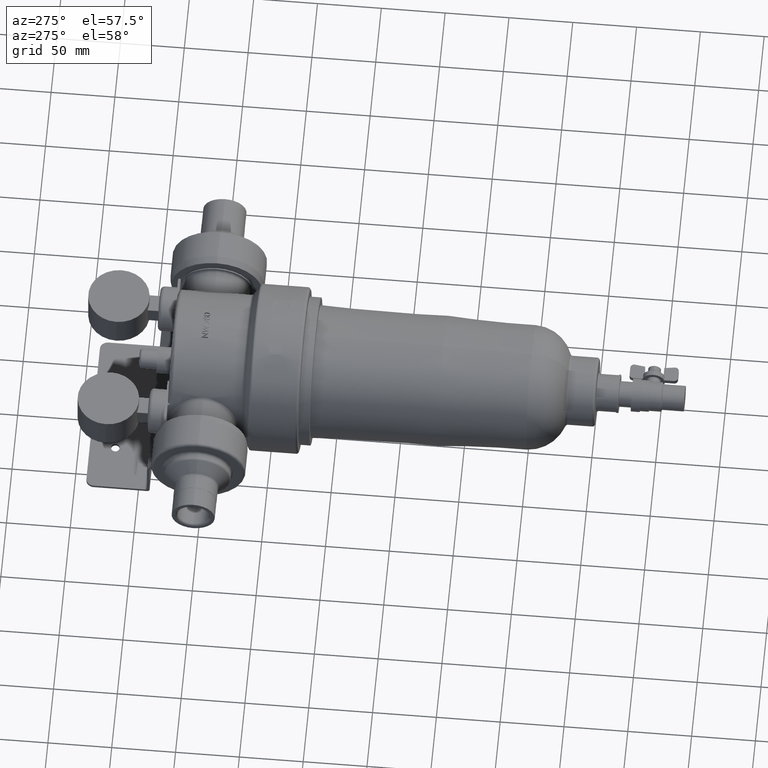
[diagram: clean part render]
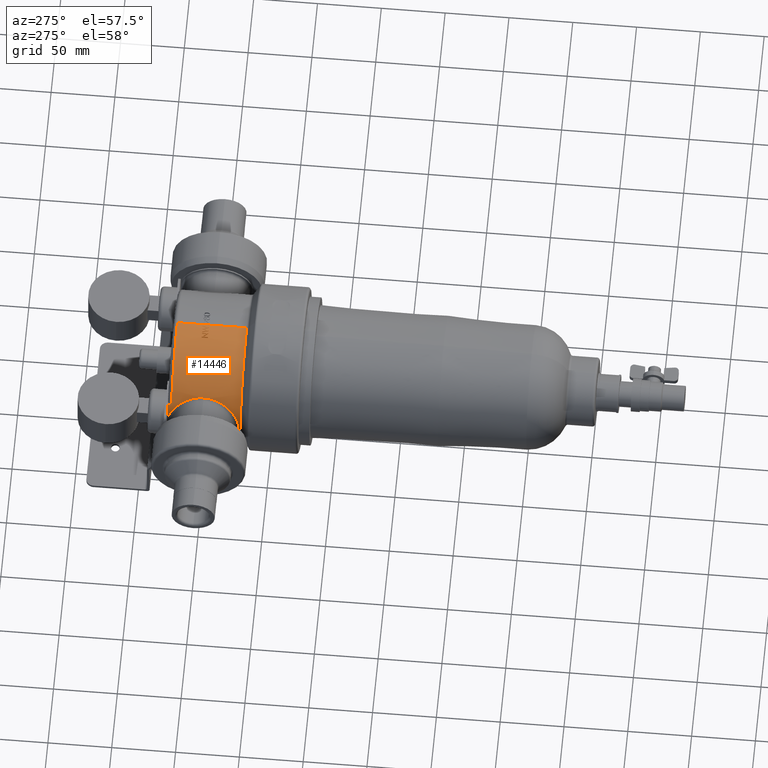
[diagram: same view with one face highlighted and labeled with its STEP entity id]
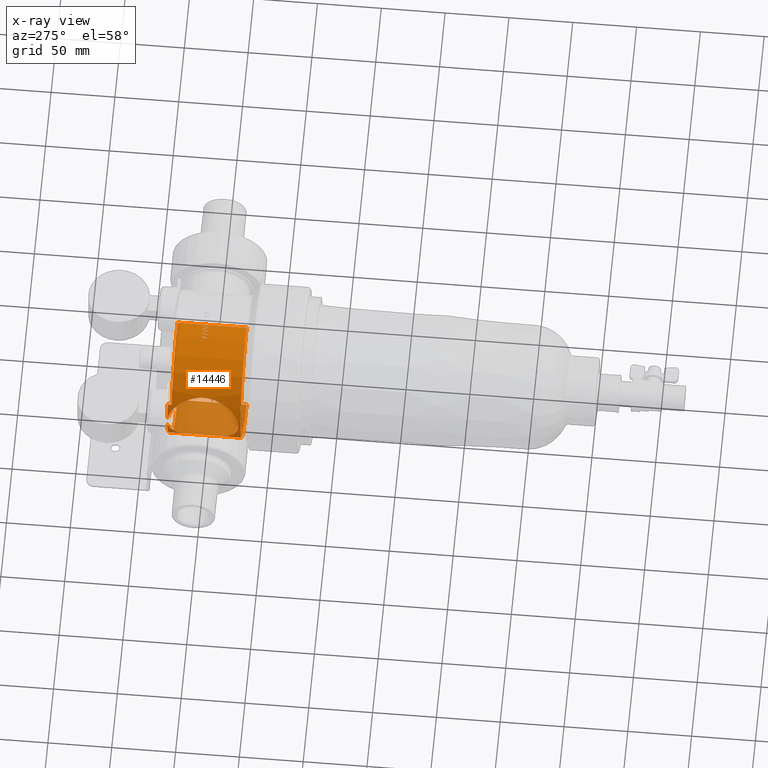
[diagram: x-ray of the same camera — body ghosted, the highlighted face saturated]
A machine part, auxiliary view. The second image highlights one B-rep face of the part: STEP entity #14446.
The next image is the same camera in x-ray: the body ghosted, the highlighted face saturated — about 26% of this face is hidden behind the body in this view.
In plain terms, the highlighted cylindrical surface (partial cylindrical patch) has radius 56 mm, axis along (-0, -1, -0).
Its self-contained STEP definition (entity closure, byte-faithful):
#8 = CARTESIAN_POINT ( 'NONE',  ( -52.67826876431577432, 24.79999999999904503, 19.00000000000000355 ) ) ;
#93 = CIRCLE ( 'NONE', #321, 56.00000000004899903 ) ;
#116 = CARTESIAN_POINT ( 'NONE',  ( -50.01986363951789372, -10.19271347802379779, 25.17961956602051288 ) ) ;
#131 = EDGE_CURVE ( 'NONE', #4404, #3033, #2638, .T. ) ;
#140 = CIRCLE ( 'NONE', #2549, 56.00000000004899903 ) ;
#149 = CARTESIAN_POINT ( 'NONE',  ( -45.17570280386297554, 25.95576085532371735, -33.16270900814051004 ) ) ;
#222 = CARTESIAN_POINT ( 'NONE',  ( -53.86925056832880188, -23.08536027207117769, 15.30501122911088174 ) ) ;
#268 = CARTESIAN_POINT ( 'NONE',  ( -55.98214386113390617, -27.96168685956749300, 2.307850287088652586 ) ) ;
#309 = DIRECTION ( 'NONE',  ( -0.0000000000000000000, 1.000000000000000000, -0.0000000000000000000 ) ) ;
#321 = AXIS2_PLACEMENT_3D ( 'NONE', #14339, #7580, #892 ) ;
#322 = CARTESIAN_POINT ( 'NONE',  ( -52.24508562245444665, -18.69246930317603272, -20.20457716263312520 ) ) ;
#325 = B_SPLINE_CURVE_WITH_KNOTS ( 'NONE', 3,
 ( #817, #14274, #7512, #8648, #1924, #9799, #3068, #10922, #4185, #12062, #5305, #13189, #6444, #14316, #7554, #866, #8695, #1967, #9849, #3112, #10964, #4230, #12114, #5349 ),
 .UNSPECIFIED., .F., .F.,
 ( 4, 2, 2, 2, 2, 2, 2, 2, 2, 2, 2, 4 ),
 ( 0.09935596830352450004, 0.1031654080999442058, 0.1050701279981540587, 0.1069748478963639116, 0.1107842876927835896, 0.1145937274892032814, 0.1164984473874131204, 0.1184031672856229594, 0.1222126070820426236, 0.1241173269802524626, 0.1260220468784623016, 0.1298314866748819796 ),
 .UNSPECIFIED. ) ;
#360 = EDGE_CURVE ( 'NONE', #9417, #9989, #11251, .T. ) ;
#370 = CARTESIAN_POINT ( 'NONE',  ( -49.16774235251829595, -3.664905493546628090, -26.80552988086612842 ) ) ;
#418 = CARTESIAN_POINT ( 'NONE',  ( -54.87612215698847962, 25.51037403673237236, 11.34116667239499421 ) ) ;
#454 = LINE ( 'NONE', #1579, #9019 ) ;
#458 = CARTESIAN_POINT ( 'NONE',  ( -10.16257008370823911, 3.519439087181315706, 55.08045314399527825 ) ) ;
#470 = CARTESIAN_POINT ( 'NONE',  ( -51.06740969086986581, 14.75376161952423182, 22.98262414479994931 ) ) ;
#526 = CARTESIAN_POINT ( 'NONE',  ( -49.06811612784895260, -1.971002174037947974, 26.98743075453587181 ) ) ;
#540 = CYLINDRICAL_SURFACE ( 'NONE', #3320, 56.00000000004899903 ) ;
#591 = CARTESIAN_POINT ( 'NONE',  ( -52.67826876431577432, 24.79999999999904503, 19.00000000000000355 ) ) ;
#597 = CARTESIAN_POINT ( 'NONE',  ( -3.894335937495541078, 4.762500000001766765, 55.86442649496563462 ) ) ;
#623 = EDGE_CURVE ( 'NONE', #4452, #11697, #13874, .T. ) ;
#647 =( BOUNDED_CURVE ( )  B_SPLINE_CURVE ( 3, ( #4211, #1946, #5282, #12089 ),
 .UNSPECIFIED., .F., .T. ) 
 B_SPLINE_CURVE_WITH_KNOTS ( ( 4, 4 ),
 ( 1.709265581001892409, 1.766112020896065227 ),
 .UNSPECIFIED. ) 
 CURVE ( )  GEOMETRIC_REPRESENTATION_ITEM ( )  RATIONAL_B_SPLINE_CURVE ( ( 1.000000000000000000, 0.9997307249851576927, 0.9997307249851576927, 1.000000000000000000 ) ) 
 REPRESENTATION_ITEM ( '' )  );
#811 = CARTESIAN_POINT ( 'NONE',  ( -46.37893829281207303, 24.79999999999905214, -31.38461538456409272 ) ) ;
#817 = CARTESIAN_POINT ( 'NONE',  ( -50.02981635227396140, 10.24497779421834309, -25.15983854803580044 ) ) ;
#832 = CARTESIAN_POINT ( 'NONE',  ( -11.29567307692307487, 0.0000000000000000000, 54.84895413537766728 ) ) ;
#866 = CARTESIAN_POINT ( 'NONE',  ( -54.56327819902914200, 24.77769281473319651, -12.64974365590061645 ) ) ;
#891 = ORIENTED_EDGE ( 'NONE', *, *, #5729, .T. ) ;
#892 = DIRECTION ( 'NONE',  ( 0.0000000000000000000, 0.0000000000000000000, -1.000000000000000000 ) ) ;
#1032 = EDGE_CURVE ( 'NONE', #3447, #4884, #11144, .T. ) ;
#1040 = AXIS2_PLACEMENT_3D ( 'NONE', #9872, #3133, #10986 ) ;
#1114 = AXIS2_PLACEMENT_3D ( 'NONE', #5746, #13605, #6866 ) ;
#1138 = EDGE_CURVE ( 'NONE', #11697, #10366, #454, .T. ) ;
#1194 = CIRCLE ( 'NONE', #13680, 56.00000000004899903 ) ;
#1249 = CARTESIAN_POINT ( 'NONE',  ( -42.47307314421517788, 28.12311276741209554, -36.49709656522879442 ) ) ;
#1304 = CARTESIAN_POINT ( 'NONE',  ( -54.17348218757675227, -23.83665479872805193, 14.19097621691386024 ) ) ;
#1323 = AXIS2_PLACEMENT_3D ( 'NONE', #11863, #5112, #12993 ) ;
#1341 = ORIENTED_EDGE ( 'NONE', *, *, #14363, .T. ) ;
#1354 = CARTESIAN_POINT ( 'NONE',  ( -55.99139943320053447, -27.98163177405310265, -1.345740343626373958 ) ) ;
#1411 = CARTESIAN_POINT ( 'NONE',  ( -51.15699844477405378, -15.09329105424412276, -22.78699118971006143 ) ) ;
#1456 = CARTESIAN_POINT ( 'NONE',  ( -49.05280751765826608, -1.395110227574517525, -27.01522489976088792 ) ) ;
#1476 = VERTEX_POINT ( 'NONE', #10128 ) ;
#1508 = CARTESIAN_POINT ( 'NONE',  ( -53.86726087857000067, 23.08064854141840883, 15.31388088642589551 ) ) ;
#1541 = ORIENTED_EDGE ( 'NONE', *, *, #4269, .T. ) ;
#1566 = CARTESIAN_POINT ( 'NONE',  ( -50.05788346752080287, 10.58063823933454017, 25.11386970624619863 ) ) ;
#1579 = CARTESIAN_POINT ( 'NONE',  ( -8.059615384615383959, -199998.4740242887347, 55.41698836870836686 ) ) ;
#1622 = CARTESIAN_POINT ( 'NONE',  ( -49.36179631878349738, -6.171778660499104951, 26.44858754322728700 ) ) ;
#1753 = DIRECTION ( 'NONE',  ( -0.0000000000000000000, -1.000000000000000000, -0.0000000000000000000 ) ) ;
#1820 = CARTESIAN_POINT ( 'NONE',  ( -1.160096153849760281, 4.762500000000946976, 55.98798243301244781 ) ) ;
#1844 = B_SPLINE_CURVE_WITH_KNOTS ( 'NONE', 3,
 ( #11706, #10562, #3575, #12845, #6092, #13963 ),
 .UNSPECIFIED., .F., .F.,
 ( 4, 2, 4 ),
 ( 0.0000000000000000000, 0.0007309858204465603760, 0.001461971640893120752 ),
 .UNSPECIFIED. ) ;
#1923 = CARTESIAN_POINT ( 'NONE',  ( -2.533894230767939959, 1.293659855768864553, 55.94264366324466664 ) ) ;
#1924 = CARTESIAN_POINT ( 'NONE',  ( -51.04006233653279168, 14.65390313904130615, -23.04425252351275688 ) ) ;
#1946 = CARTESIAN_POINT ( 'NONE',  ( -8.780640613199146571, 1.252396364791156014, 55.31750769987536387 ) ) ;
#1967 = CARTESIAN_POINT ( 'NONE',  ( -55.12920320584807854, 26.08143878922577130, -9.854211285956115063 ) ) ;
#1969 = CARTESIAN_POINT ( 'NONE',  ( -2.505273437504699885, -1.713906794265085409E-12, 55.94393269165853866 ) ) ;
#2013 = CARTESIAN_POINT ( 'NONE',  ( -5.449399038461537614, 0.0000000000000000000, 55.73422691780250915 ) ) ;
#2083 = CARTESIAN_POINT ( 'NONE',  ( 0.0000000000000000000, 24.79999999999904503, 0.0000000000000000000 ) ) ;
#2084 = LINE ( 'NONE', #7855, #7682 ) ;
#2134 =( BOUNDED_CURVE ( )  B_SPLINE_CURVE ( 3, ( #11329, #3471, #5720, #13584 ),
 .UNSPECIFIED., .F., .F. ) 
 B_SPLINE_CURVE_WITH_KNOTS ( ( 4, 4 ),
 ( 4.733106465139869989, 4.756049560100763074 ),
 .UNSPECIFIED. ) 
 CURVE ( )  GEOMETRIC_REPRESENTATION_ITEM ( )  RATIONAL_B_SPLINE_CURVE ( ( 1.000000000000000000, 0.9999561350138439497, 0.9999561350138439497, 1.000000000000000000 ) ) 
 REPRESENTATION_ITEM ( '' )  );
#2285 = DIRECTION ( 'NONE',  ( -0.0000000000000000000, -1.000000000000000000, -0.0000000000000000000 ) ) ;
#2302 = VERTEX_POINT ( 'NONE', #3008 ) ;
#2431 = LINE ( 'NONE', #8, #8416 ) ;
#2436 = CARTESIAN_POINT ( 'NONE',  ( -1.597040264423076339, 4.762499999998226485, 55.97722271066419353 ) ) ;
#2443 = CARTESIAN_POINT ( 'NONE',  ( -54.55952800220082111, -24.76560191211661532, 12.64499423469480988 ) ) ;
#2448 = EDGE_LOOP ( 'NONE', ( #9526, #10483, #12003, #12704, #3285, #14414, #8878, #13399, #4153, #6225 ) ) ;
#2492 = CARTESIAN_POINT ( 'NONE',  ( -55.85756534268874418, -27.69354318647602398, -4.090341454279420752 ) ) ;
#2537 = AXIS2_PLACEMENT_3D ( 'NONE', #9913, #3179, #11039 ) ;
#2538 = CARTESIAN_POINT ( 'NONE',  ( -50.65453260588969897, -13.13692131868571167, -23.87829095859115114 ) ) ;
#2549 = AXIS2_PLACEMENT_3D ( 'NONE', #5110, #12991, #6254 ) ;
#2589 = CARTESIAN_POINT ( 'NONE',  ( -49.05130272843145178, 1.339029269231734043, -27.01807382297662485 ) ) ;
#2593 = CARTESIAN_POINT ( 'NONE',  ( -55.84654443319985262, 27.66950981133597764, 4.273920414519997379 ) ) ;
#2601 = LINE ( 'NONE', #10849, #13164 ) ;
#2638 = LINE ( 'NONE', #4005, #14267 ) ;
#2647 = CARTESIAN_POINT ( 'NONE',  ( -53.49804126522003855, 22.14061478511168346, 16.55731217353506324 ) ) ;
#2699 = CARTESIAN_POINT ( 'NONE',  ( -49.57696355372050334, 7.538801731616665336, 26.04123570593789339 ) ) ;
#2711 = CIRCLE ( 'NONE', #1040, 56.00000000004899903 ) ;
#2760 = CARTESIAN_POINT ( 'NONE',  ( -50.01986363951789372, -10.19271347802379779, 25.17961956602051288 ) ) ;
#2879 = VERTEX_POINT ( 'NONE', #6740 ) ;
#2901 = CARTESIAN_POINT ( 'NONE',  ( -43.38589474632436094, 27.80000000001336957, -35.40711986403795919 ) ) ;
#2930 = VERTEX_POINT ( 'NONE', #12417 ) ;
#2937 = CARTESIAN_POINT ( 'NONE',  ( -3.938221153846153122, 3.642472956730769873, 55.86134991341418043 ) ) ;
#2980 = CIRCLE ( 'NONE', #10535, 56.00000000004899903 ) ;
#2986 = CARTESIAN_POINT ( 'NONE',  ( -6.716346153848658851, 4.762499999997525713, 55.59577946523612013 ) ) ;
#3008 = CARTESIAN_POINT ( 'NONE',  ( -3.956347656249999289, 4.762499999998226485, 55.86006904066958612 ) ) ;
#3019 = VERTEX_POINT ( 'NONE', #8477 ) ;
#3025 = DIRECTION ( 'NONE',  ( -0.0000000000000000000, 1.000000000000000000, -0.0000000000000000000 ) ) ;
#3033 = VERTEX_POINT ( 'NONE', #8526 ) ;
#3046 = EDGE_CURVE ( 'NONE', #8832, #4312, #2601, .T. ) ;
#3068 = CARTESIAN_POINT ( 'NONE',  ( -51.47613175537645702, 16.20700503487434574, -22.05353612358996784 ) ) ;
#3112 = CARTESIAN_POINT ( 'NONE',  ( -55.41571065340733782, 26.72455781138297937, -8.090611818625141893 ) ) ;
#3133 = DIRECTION ( 'NONE',  ( -0.0000000000000000000, -1.000000000000000000, -0.0000000000000000000 ) ) ;
#3163 = EDGE_CURVE ( 'NONE', #10826, #14122, #1844, .T. ) ;
#3179 = DIRECTION ( 'NONE',  ( -0.0000000000000000000, -1.000000000000000000, 0.0000000000000000000 ) ) ;
#3214 = DIRECTION ( 'NONE',  ( 0.0000000000000000000, 0.0000000000000000000, -1.000000000000000000 ) ) ;
#3215 =( BOUNDED_CURVE ( )  B_SPLINE_CURVE ( 3, ( #4026, #11898, #13033, #6287 ),
 .UNSPECIFIED., .F., .T. ) 
 B_SPLINE_CURVE_WITH_KNOTS ( ( 4, 4 ),
 ( 1.475248366117060117, 1.500088357438121855 ),
 .UNSPECIFIED. ) 
 CURVE ( )  GEOMETRIC_REPRESENTATION_ITEM ( )  RATIONAL_B_SPLINE_CURVE ( ( 1.000000000000000000, 0.9999485818968996131, 0.9999485818968996131, 1.000000000000000000 ) ) 
 REPRESENTATION_ITEM ( '' )  );
#3285 = ORIENTED_EDGE ( 'NONE', *, *, #7593, .T. ) ;
#3320 = AXIS2_PLACEMENT_3D ( 'NONE', #4176, #5338, #4222 ) ;
#3412 = CIRCLE ( 'NONE', #3651, 56.00000000004899903 ) ;
#3414 = AXIS2_PLACEMENT_3D ( 'NONE', #5651, #13517, #6778 ) ;
#3447 = VERTEX_POINT ( 'NONE', #10526 ) ;
#3471 = CARTESIAN_POINT ( 'NONE',  ( -1.588284744467647780, 3.174448406862394378, 55.97911017301107961 ) ) ;
#3488 = CIRCLE ( 'NONE', #3414, 56.00000000004899903 ) ;
#3526 = CARTESIAN_POINT ( 'NONE',  ( -50.72457768219912566, -13.49636635039298937, 23.74968666090094516 ) ) ;
#3572 = CARTESIAN_POINT ( 'NONE',  ( -55.06579438934059567, -25.93861423784753839, 10.22004183812363820 ) ) ;
#3575 = CARTESIAN_POINT ( 'NONE',  ( -43.07549463470297013, 27.82680463578495988, -35.78489293102814628 ) ) ;
#3621 = CARTESIAN_POINT ( 'NONE',  ( -55.37972679751925398, -26.65106520606718021, -8.482903743881241354 ) ) ;
#3651 = AXIS2_PLACEMENT_3D ( 'NONE', #6988, #309, #8110 ) ;
#3677 = CARTESIAN_POINT ( 'NONE',  ( -50.37297427903286717, -11.91951390749934170, -24.46648985351759720 ) ) ;
#3723 = CARTESIAN_POINT ( 'NONE',  ( -49.19290748740689168, 4.085329880635251598, -26.75985900928080241 ) ) ;
#3737 = VERTEX_POINT ( 'NONE', #11125 ) ;
#3760 = AXIS2_PLACEMENT_3D ( 'NONE', #5034, #12925, #6183 ) ;
#3777 = CARTESIAN_POINT ( 'NONE',  ( -52.98660327008105497, 20.78693542379631509, 18.14119754997084399 ) ) ;
#3782 = EDGE_CURVE ( 'NONE', #9385, #5102, #3488, .T. ) ;
#3811 = VECTOR ( 'NONE', #9853, 1000.000000000000000 ) ;
#3832 = CARTESIAN_POINT ( 'NONE',  ( -49.37951799400124031, 5.990119786070668084, 26.41355925374264046 ) ) ;
#3835 = CIRCLE ( 'NONE', #7084, 56.00000000004899903 ) ;
#3848 = FACE_BOUND ( 'NONE', #2448, .T. ) ;
#3954 = CARTESIAN_POINT ( 'NONE',  ( -2.533894230767939959, 1.293659855768864553, 55.94264366324466664 ) ) ;
#4005 = CARTESIAN_POINT ( 'NONE',  ( 0.0000000000000000000, -199998.4740242887347, -56.00000000004899903 ) ) ;
#4026 = CARTESIAN_POINT ( 'NONE',  ( -5.342548076920437872, 1.269809194712284706, 55.74457085718106697 ) ) ;
#4051 = CARTESIAN_POINT ( 'NONE',  ( -4.905506424744938698, 1.212805085479569556, 55.78683818654170778 ) ) ;
#4087 = ORIENTED_EDGE ( 'NONE', *, *, #4101, .T. ) ;
#4101 = EDGE_CURVE ( 'NONE', #2879, #9417, #10095, .T. ) ;
#4153 = ORIENTED_EDGE ( 'NONE', *, *, #6512, .T. ) ;
#4167 = LINE ( 'NONE', #8699, #3811 ) ;
#4176 = CARTESIAN_POINT ( 'NONE',  ( 0.0000000000000000000, -199998.4740242887347, 0.0000000000000000000 ) ) ;
#4185 = CARTESIAN_POINT ( 'NONE',  ( -52.23464442568142374, 18.64161297744437107, -20.20708486750293176 ) ) ;
#4211 = CARTESIAN_POINT ( 'NONE',  ( -7.729522235594333601, -1.458035081558506363E-11, 55.46399269810045496 ) ) ;
#4222 = DIRECTION ( 'NONE',  ( 0.0000000000000000000, 0.0000000000000000000, -1.000000000000000000 ) ) ;
#4230 = CARTESIAN_POINT ( 'NONE',  ( -55.72356337809252835, 27.40354273027796594, -5.688128379634496135 ) ) ;
#4240 = ORIENTED_EDGE ( 'NONE', *, *, #9214, .T. ) ;
#4255 =( BOUNDED_CURVE ( )  B_SPLINE_CURVE ( 3, ( #1969, #10966, #5352, #13233 ),
 .UNSPECIFIED., .F., .F. ) 
 B_SPLINE_CURVE_WITH_KNOTS ( ( 4, 4 ),
 ( 1.615548288711998959, 1.641179801486082335 ),
 .UNSPECIFIED. ) 
 CURVE ( )  GEOMETRIC_REPRESENTATION_ITEM ( )  RATIONAL_B_SPLINE_CURVE ( ( 1.000000000000000000, 0.9999452528787374783, 0.9999452528787374783, 1.000000000000000000 ) ) 
 REPRESENTATION_ITEM ( '' )  );
#4265 = CARTESIAN_POINT ( 'NONE',  ( -6.294564734514414006, 3.177008399608556743, 55.64673351320088557 ) ) ;
#4269 = EDGE_CURVE ( 'NONE', #3737, #1476, #1194, .T. ) ;
#4312 = VERTEX_POINT ( 'NONE', #13116 ) ;
#4313 = CARTESIAN_POINT ( 'NONE',  ( -7.729522235594333601, -1.458035081558506363E-11, 55.46399269810045496 ) ) ;
#4348 = ORIENTED_EDGE ( 'NONE', *, *, #131, .T. ) ;
#4396 = EDGE_CURVE ( 'NONE', #11371, #4716, #3835, .T. ) ;
#4404 = VERTEX_POINT ( 'NONE', #13425 ) ;
#4452 = VERTEX_POINT ( 'NONE', #12403 ) ;
#4578 = B_SPLINE_CURVE_WITH_KNOTS ( 'NONE', 3,
 ( #10453, #2593, #4818, #12721, #5973, #13848, #7107, #418, #8224, #1508, #9373, #2647, #10501, #3777, #11643, #4877, #12773, #6028, #13898, #7163, #470, #8279, #1566, #9439, #2699, #10556, #3832, #11701, #4933, #12838, #6087, #13958, #7215, #526, #8327, #1622, #9493, #2760 ),
 .UNSPECIFIED., .F., .F.,
 ( 4, 2, 2, 2, 2, 2, 2, 2, 2, 2, 2, 2, 2, 2, 2, 2, 2, 2, 4 ),
 ( 0.1363665023030385393, 0.1395990909267911528, 0.1412153852386674457, 0.1428316795505437664, 0.1492968567980489658, 0.1509131511099252587, 0.1525294454218015794, 0.1557620340455541652, 0.1589946226693067788, 0.1606109169811830995, 0.1622272112930594201, 0.1686923885405647028, 0.1703086828524410234, 0.1719249771643173441, 0.1751575657880699854, 0.1767738600999463061, 0.1783901544118226545, 0.1816227430355752959, 0.1880879202830805785 ),
 .UNSPECIFIED. ) ;
#4612 = CARTESIAN_POINT ( 'NONE',  ( -51.56012695245271971, -16.49787784685186054, 21.86064534253118552 ) ) ;
#4662 = CARTESIAN_POINT ( 'NONE',  ( -55.41252320706994539, -26.71715031488814063, 8.101828635923956412 ) ) ;
#4716 = VERTEX_POINT ( 'NONE', #591 ) ;
#4718 = CARTESIAN_POINT ( 'NONE',  ( -54.74749492541497631, -25.20619658683678566, -11.80532110325133566 ) ) ;
#4759 = CARTESIAN_POINT ( 'NONE',  ( -49.85658781522842986, -9.435288845605967367, -25.51303831932037980 ) ) ;
#4815 = CARTESIAN_POINT ( 'NONE',  ( -49.47092462580818051, 6.787064851769595286, -26.24313812412331970 ) ) ;
#4818 = CARTESIAN_POINT ( 'NONE',  ( -55.75718719545628232, 27.47620486152612074, 5.310291907569248515 ) ) ;
#4824 = EDGE_CURVE ( 'NONE', #10796, #7558, #325, .T. ) ;
#4875 = EDGE_CURVE ( 'NONE', #1476, #9385, #10540, .T. ) ;
#4877 = CARTESIAN_POINT ( 'NONE',  ( -52.20605093960066512, 18.55065397789064008, 20.27514775128339153 ) ) ;
#4884 = VERTEX_POINT ( 'NONE', #6489 ) ;
#4885 = CARTESIAN_POINT ( 'NONE',  ( -1.597040264423076339, 4.762499999998226485, 55.97722271066419353 ) ) ;
#4933 = CARTESIAN_POINT ( 'NONE',  ( -49.13988580028009778, 3.378205354857231502, 26.85667588207920886 ) ) ;
#4978 = CARTESIAN_POINT ( 'NONE',  ( -10.86826923076922924, 3.739783653846153744, 54.93524118389764510 ) ) ;
#5034 = CARTESIAN_POINT ( 'NONE',  ( 0.0000000000000000000, 0.0000000000000000000, 0.0000000000000000000 ) ) ;
#5085 = ORIENTED_EDGE ( 'NONE', *, *, #3782, .T. ) ;
#5102 = VERTEX_POINT ( 'NONE', #13454 ) ;
#5110 = CARTESIAN_POINT ( 'NONE',  ( 0.0000000000000000000, 4.762499999998226485, 0.0000000000000000000 ) ) ;
#5112 = DIRECTION ( 'NONE',  ( -0.0000000000000000000, 1.000000000000000000, -0.0000000000000000000 ) ) ;
#5123 = DIRECTION ( 'NONE',  ( -0.0000000000000000000, -1.000000000000000000, -0.0000000000000000000 ) ) ;
#5140 = EDGE_CURVE ( 'NONE', #14425, #14122, #5314, .T. ) ;
#5282 = CARTESIAN_POINT ( 'NONE',  ( -9.827171416193868581, 2.499326683252950154, 55.14120972249950370 ) ) ;
#5305 = CARTESIAN_POINT ( 'NONE',  ( -53.15296968942349309, 21.24025379451915541, -17.65653213809780908 ) ) ;
#5314 =( BOUNDED_CURVE ( )  B_SPLINE_CURVE ( 3, ( #6830, #149, #7943, #1249 ),
 .UNSPECIFIED., .F., .T. ) 
 B_SPLINE_CURVE_WITH_KNOTS ( ( 4, 4 ),
 ( 2.165712776435986697, 2.280664597954153994 ),
 .UNSPECIFIED. ) 
 CURVE ( )  GEOMETRIC_REPRESENTATION_ITEM ( )  RATIONAL_B_SPLINE_CURVE ( ( 1.000000000000000000, 0.9988991429991541660, 0.9988991429991541660, 1.000000000000000000 ) ) 
 REPRESENTATION_ITEM ( '' )  );
#5331 = CIRCLE ( 'NONE', #2537, 56.00000000004899903 ) ;
#5338 = DIRECTION ( 'NONE',  ( -0.0000000000000000000, -1.000000000000000000, -0.0000000000000000000 ) ) ;
#5349 = CARTESIAN_POINT ( 'NONE',  ( -55.90703341496339362, 27.80000000001336957, -3.225463492841652791 ) ) ;
#5352 = CARTESIAN_POINT ( 'NONE',  ( -3.460937787325119697, 2.429245331299461075, 55.89499835644895853 ) ) ;
#5506 = ORIENTED_EDGE ( 'NONE', *, *, #12789, .T. ) ;
#5549 = ORIENTED_EDGE ( 'NONE', *, *, #10084, .T. ) ;
#5651 = CARTESIAN_POINT ( 'NONE',  ( 0.0000000000000000000, 4.762499999998226485, 0.0000000000000000000 ) ) ;
#5717 = CARTESIAN_POINT ( 'NONE',  ( -8.059615384615383959, 4.762499999998226485, 55.41698836870836686 ) ) ;
#5720 = CARTESIAN_POINT ( 'NONE',  ( -2.016343385036039493, 1.586878768142178986, 55.96532661876675263 ) ) ;
#5729 = EDGE_CURVE ( 'NONE', #4716, #13924, #2431, .T. ) ;
#5746 = CARTESIAN_POINT ( 'NONE',  ( 0.0000000000000000000, 0.0000000000000000000, 0.0000000000000000000 ) ) ;
#5778 = CARTESIAN_POINT ( 'NONE',  ( -52.22719246575508123, -18.61101813324039966, 20.21713219238609582 ) ) ;
#5816 = EDGE_CURVE ( 'NONE', #14121, #3019, #2084, .T. ) ;
#5823 = CARTESIAN_POINT ( 'NONE',  ( -55.58833417451867120, -27.10600428013712460, 6.792093179330711550 ) ) ;
#5870 = CARTESIAN_POINT ( 'NONE',  ( -54.19064330989254330, -23.88172201676592721, -14.14042020435324787 ) ) ;
#5925 = CARTESIAN_POINT ( 'NONE',  ( -49.32454765886187431, -5.476413143469344824, -26.51603758703044633 ) ) ;
#5962 = CARTESIAN_POINT ( 'NONE',  ( -50.01986363951789372, -10.19271347802379779, 25.17961956602051288 ) ) ;
#5972 = CARTESIAN_POINT ( 'NONE',  ( -49.86977354025314924, 9.406611144138279812, -25.47808035545498129 ) ) ;
#5973 = CARTESIAN_POINT ( 'NONE',  ( -55.51709040209590995, 26.94906103829309885, 7.356229195288308986 ) ) ;
#6028 = CARTESIAN_POINT ( 'NONE',  ( -51.56418272220377474, 16.50248781419169219, 21.84593115662238816 ) ) ;
#6077 = CARTESIAN_POINT ( 'NONE',  ( -11.20599459134118270, 4.762500000004188827, 54.86734625644218255 ) ) ;
#6087 = CARTESIAN_POINT ( 'NONE',  ( -49.05440504163266979, 1.253740846585963187, 27.01232266030746842 ) ) ;
#6092 = CARTESIAN_POINT ( 'NONE',  ( -42.61727279470895269, 28.01403583057412661, -36.32928589317037904 ) ) ;
#6104 = CARTESIAN_POINT ( 'NONE',  ( -5.653510192316672622, 2.435041850255395435, 55.71476831271694152 ) ) ;
#6183 = DIRECTION ( 'NONE',  ( 0.0000000000000000000, 0.0000000000000000000, 1.000000000000000000 ) ) ;
#6225 = ORIENTED_EDGE ( 'NONE', *, *, #12894, .T. ) ;
#6236 = CARTESIAN_POINT ( 'NONE',  ( -10.86826923076922924, 0.0000000000000000000, 54.93524118389763800 ) ) ;
#6254 = DIRECTION ( 'NONE',  ( 0.0000000000000000000, 0.0000000000000000000, -1.000000000000000000 ) ) ;
#6284 = CARTESIAN_POINT ( 'NONE',  ( 0.0000000000000000000, 0.0000000000000000000, 0.0000000000000000000 ) ) ;
#6287 = CARTESIAN_POINT ( 'NONE',  ( -3.956347656249999289, 4.762499999998226485, 55.86006904066958612 ) ) ;
#6444 = CARTESIAN_POINT ( 'NONE',  ( -53.74536702754417661, 22.77453069268829466, -15.73874154726293639 ) ) ;
#6489 = CARTESIAN_POINT ( 'NONE',  ( -2.505273437504699885, -1.713906794265085409E-12, 55.94393269165853866 ) ) ;
#6497 = ORIENTED_EDGE ( 'NONE', *, *, #14542, .T. ) ;
#6512 = EDGE_CURVE ( 'NONE', #8632, #8716, #11210, .T. ) ;
#6579 = EDGE_CURVE ( 'NONE', #14425, #4404, #9794, .T. ) ;
#6619 = CIRCLE ( 'NONE', #3760, 56.00000000004899903 ) ;
#6636 = CARTESIAN_POINT ( 'NONE',  ( 0.0000000000000000000, 24.79999999999904503, 0.0000000000000000000 ) ) ;
#6740 = CARTESIAN_POINT ( 'NONE',  ( -3.894335937495541078, 4.762500000001766765, 55.86442649496563462 ) ) ;
#6778 = DIRECTION ( 'NONE',  ( 0.0000000000000000000, 0.0000000000000000000, -1.000000000000000000 ) ) ;
#6804 = FACE_BOUND ( 'NONE', #13759, .T. ) ;
#6830 = CARTESIAN_POINT ( 'NONE',  ( -46.37893829281207303, 24.79999999999905214, -31.38461538456409272 ) ) ;
#6866 = DIRECTION ( 'NONE',  ( 0.0000000000000000000, 0.0000000000000000000, 1.000000000000000000 ) ) ;
#6889 = CARTESIAN_POINT ( 'NONE',  ( -2.221709705291699422, 2.449569157837714783, 55.95678390611200825 ) ) ;
#6894 = CARTESIAN_POINT ( 'NONE',  ( -53.34685283257105937, -21.76516480756203364, 17.09811981018098237 ) ) ;
#6921 = EDGE_CURVE ( 'NONE', #10937, #10796, #13847, .T. ) ;
#6930 = ORIENTED_EDGE ( 'NONE', *, *, #1032, .T. ) ;
#6941 = CARTESIAN_POINT ( 'NONE',  ( -55.87763575324022014, -27.73892085992099155, 4.113242611961237749 ) ) ;
#6988 = CARTESIAN_POINT ( 'NONE',  ( 0.0000000000000000000, 4.762499999998226485, 0.0000000000000000000 ) ) ;
#6999 = CARTESIAN_POINT ( 'NONE',  ( -53.14654533051417928, -21.24434192806960553, -17.69798376793219319 ) ) ;
#7047 = CARTESIAN_POINT ( 'NONE',  ( -49.20118134118981601, -4.118057224316881815, -26.74416795417576864 ) ) ;
#7084 = AXIS2_PLACEMENT_3D ( 'NONE', #6636, #14518, #7755 ) ;
#7091 = CARTESIAN_POINT ( 'NONE',  ( -50.02981635227396140, 10.24497779421834309, -25.15983854803580044 ) ) ;
#7093 = CARTESIAN_POINT ( 'NONE',  ( -55.90703341496334389, 27.80000000001336957, 3.225463492842469027 ) ) ;
#7107 = CARTESIAN_POINT ( 'NONE',  ( -55.29484354382937994, 26.45452740211492326, 8.873046559584933490 ) ) ;
#7163 = CARTESIAN_POINT ( 'NONE',  ( -51.18964573653394723, 15.20087996919015083, 22.70938980845658506 ) ) ;
#7211 = EDGE_CURVE ( 'NONE', #11418, #2302, #3215, .T. ) ;
#7215 = CARTESIAN_POINT ( 'NONE',  ( -49.04066002989499395, -0.3575264970001880704, 27.03727100879656930 ) ) ;
#7359 = EDGE_CURVE ( 'NONE', #8887, #8632, #647, .T. ) ;
#7386 = CARTESIAN_POINT ( 'NONE',  ( -4.422105825438121585, 2.427031064527879423, 55.82723607884621231 ) ) ;
#7406 = DIRECTION ( 'NONE',  ( 0.0000000000000000000, 0.0000000000000000000, 1.000000000000000000 ) ) ;
#7488 = CIRCLE ( 'NONE', #13259, 56.00000000004899903 ) ;
#7512 = CARTESIAN_POINT ( 'NONE',  ( -50.49761950030747215, 12.50950398610604530, -24.21560305237880328 ) ) ;
#7554 = CARTESIAN_POINT ( 'NONE',  ( -54.16687305246863815, 23.82121904850460936, -14.22117081389653670 ) ) ;
#7558 = VERTEX_POINT ( 'NONE', #11233 ) ;
#7559 = CARTESIAN_POINT ( 'NONE',  ( -8.059615384615383959, 1.014130108188737722, 55.41698836870836686 ) ) ;
#7580 = DIRECTION ( 'NONE',  ( 0.0000000000000000000, 1.000000000000000000, 0.0000000000000000000 ) ) ;
#7593 = EDGE_CURVE ( 'NONE', #10366, #14121, #3412, .T. ) ;
#7599 = CARTESIAN_POINT ( 'NONE',  ( -5.872230799454311700, 1.589439872635639794, 55.69288465615807127 ) ) ;
#7682 = VECTOR ( 'NONE', #2285, 1000.000000000000000 ) ;
#7755 = DIRECTION ( 'NONE',  ( 0.0000000000000000000, 0.0000000000000000000, -1.000000000000000000 ) ) ;
#7808 = DIRECTION ( 'NONE',  ( 0.0000000000000000000, 1.000000000000000000, 0.0000000000000000000 ) ) ;
#7855 = CARTESIAN_POINT ( 'NONE',  ( -7.632211538461537437, -199998.4740242887347, 55.47746702074331893 ) ) ;
#7943 = CARTESIAN_POINT ( 'NONE',  ( -43.87231290844089671, 27.06468587900905476, -34.86874750611794127 ) ) ;
#7953 = ORIENTED_EDGE ( 'NONE', *, *, #4875, .T. ) ;
#8009 = ORIENTED_EDGE ( 'NONE', *, *, #9824, .T. ) ;
#8021 = CARTESIAN_POINT ( 'NONE',  ( -53.97203358420400576, -23.34130319799345443, 14.93886103765166773 ) ) ;
#8043 = CIRCLE ( 'NONE', #1323, 56.00000000004899903 ) ;
#8074 = CARTESIAN_POINT ( 'NONE',  ( -56.00579039020573902, -28.01242455363011885, -0.4278946500373639328 ) ) ;
#8110 = DIRECTION ( 'NONE',  ( 0.0000000000000000000, 0.0000000000000000000, -1.000000000000000000 ) ) ;
#8120 = CARTESIAN_POINT ( 'NONE',  ( -51.79518558131513117, -17.31432205079438091, -21.31667375588457602 ) ) ;
#8166 = CARTESIAN_POINT ( 'NONE',  ( -49.08484125473599136, -2.304104018641741192, -26.95721869799280057 ) ) ;
#8224 = CARTESIAN_POINT ( 'NONE',  ( -54.45680618933465666, 24.54134866131460768, 13.17589228067193297 ) ) ;
#8279 = CARTESIAN_POINT ( 'NONE',  ( -50.47554387547113208, 12.49192739753821080, 24.28005338243183431 ) ) ;
#8327 = CARTESIAN_POINT ( 'NONE',  ( -49.11914532620803442, -3.031733041232747006, 26.89494826429633889 ) ) ;
#8343 = VERTEX_POINT ( 'NONE', #1820 ) ;
#8416 = VECTOR ( 'NONE', #7808, 1000.000000000000000 ) ;
#8471 = CARTESIAN_POINT ( 'NONE',  ( 0.0000000000000000000, 27.80000000001336957, 0.0000000000000000000 ) ) ;
#8477 = CARTESIAN_POINT ( 'NONE',  ( -7.632211538461536549, 0.0000000000000000000, 55.47746702074331182 ) ) ;
#8490 = ORIENTED_EDGE ( 'NONE', *, *, #11696, .T. ) ;
#8526 = CARTESIAN_POINT ( 'NONE',  ( 0.0000000000000000000, -29.41339707336965148, -56.00000000004899903 ) ) ;
#8632 = VERTEX_POINT ( 'NONE', #4978 ) ;
#8648 = CARTESIAN_POINT ( 'NONE',  ( -50.90057527468954390, 14.12465169236077145, -23.35021816400930561 ) ) ;
#8664 = EDGE_CURVE ( 'NONE', #3019, #8887, #6619, .T. ) ;
#8695 = CARTESIAN_POINT ( 'NONE',  ( -54.80626480841887371, 25.34367843989972613, -11.55904158885262056 ) ) ;
#8699 = CARTESIAN_POINT ( 'NONE',  ( 6.858022075231178628E-15, -199998.4740242887347, 56.00000000004899903 ) ) ;
#8716 = VERTEX_POINT ( 'NONE', #6236 ) ;
#8785 = CARTESIAN_POINT ( 'NONE',  ( 6.858022075231178628E-15, -29.41339707336965148, 56.00000000004899903 ) ) ;
#8808 = EDGE_CURVE ( 'NONE', #7558, #10826, #2980, .T. ) ;
#8832 = VERTEX_POINT ( 'NONE', #832 ) ;
#8878 = ORIENTED_EDGE ( 'NONE', *, *, #8664, .T. ) ;
#8887 = VERTEX_POINT ( 'NONE', #4313 ) ;
#9015 = ORIENTED_EDGE ( 'NONE', *, *, #11488, .T. ) ;
#9019 = VECTOR ( 'NONE', #11652, 1000.000000000000000 ) ;
#9157 = CARTESIAN_POINT ( 'NONE',  ( -2.533894230767939959, 1.293659855768864553, 55.94264366324466664 ) ) ;
#9162 = CARTESIAN_POINT ( 'NONE',  ( -54.27240221156483813, -24.07666842547919828, 13.80818061675208064 ) ) ;
#9176 = ORIENTED_EDGE ( 'NONE', *, *, #8808, .T. ) ;
#9212 = CARTESIAN_POINT ( 'NONE',  ( -55.91689021604054943, -27.82134605978692576, -3.185783440214001949 ) ) ;
#9214 = EDGE_CURVE ( 'NONE', #5102, #11418, #11629, .T. ) ;
#9246 = ORIENTED_EDGE ( 'NONE', *, *, #4396, .T. ) ;
#9265 = CARTESIAN_POINT ( 'NONE',  ( -50.95038985877094717, -14.32709505062070221, -23.24382893844921938 ) ) ;
#9282 = AXIS2_PLACEMENT_3D ( 'NONE', #2083, #9945, #3214 ) ;
#9320 = CARTESIAN_POINT ( 'NONE',  ( -49.03603825019924756, 0.4264564535408711388, -27.04565130430561126 ) ) ;
#9373 = CARTESIAN_POINT ( 'NONE',  ( -53.74606011473340317, 22.77584697619013809, 15.73359551312218585 ) ) ;
#9385 = VERTEX_POINT ( 'NONE', #2986 ) ;
#9417 = VERTEX_POINT ( 'NONE', #1923 ) ;
#9439 = CARTESIAN_POINT ( 'NONE',  ( -49.65235469416831648, 8.052723269816121743, 25.89738997725541125 ) ) ;
#9493 = CARTESIAN_POINT ( 'NONE',  ( -49.64310421477028257, -8.209375420225928366, 25.92806038345885611 ) ) ;
#9519 = CARTESIAN_POINT ( 'NONE',  ( -3.441183792636383298, 3.607057364161726731, 55.89601594810425667 ) ) ;
#9526 = ORIENTED_EDGE ( 'NONE', *, *, #3046, .T. ) ;
#9568 = VERTEX_POINT ( 'NONE', #8785 ) ;
#9627 = DIRECTION ( 'NONE',  ( 0.0000000000000000000, 0.0000000000000000000, -1.000000000000000000 ) ) ;
#9757 = CARTESIAN_POINT ( 'NONE',  ( 0.0000000000000000000, 4.762499999998226485, 0.0000000000000000000 ) ) ;
#9758 = ORIENTED_EDGE ( 'NONE', *, *, #3163, .T. ) ;
#9794 = CIRCLE ( 'NONE', #9282, 56.00000000004899903 ) ;
#9799 = CARTESIAN_POINT ( 'NONE',  ( -51.32756721070671091, 15.69419757360898693, -22.39657076239491218 ) ) ;
#9824 = EDGE_CURVE ( 'NONE', #10940, #10937, #4578, .T. ) ;
#9849 = CARTESIAN_POINT ( 'NONE',  ( -55.22991861951582848, 26.30875007182720182, -9.274431308899677262 ) ) ;
#9853 = DIRECTION ( 'NONE',  ( -0.0000000000000000000, -1.000000000000000000, -0.0000000000000000000 ) ) ;
#9872 = CARTESIAN_POINT ( 'NONE',  ( 0.0000000000000000000, 27.80000000001336957, 0.0000000000000000000 ) ) ;
#9913 = CARTESIAN_POINT ( 'NONE',  ( 0.0000000000000000000, 0.0000000000000000000, 0.0000000000000000000 ) ) ;
#9945 = DIRECTION ( 'NONE',  ( -0.0000000000000000000, -1.000000000000000000, -0.0000000000000000000 ) ) ;
#9989 = VERTEX_POINT ( 'NONE', #4885 ) ;
#10084 = EDGE_CURVE ( 'NONE', #2302, #2879, #140, .T. ) ;
#10095 =( BOUNDED_CURVE ( )  B_SPLINE_CURVE ( 3, ( #597, #9519, #10687, #3954 ),
 .UNSPECIFIED., .F., .T. ) 
 B_SPLINE_CURVE_WITH_KNOTS ( ( 4, 4 ),
 ( 4.642791093684190962, 4.667125414778066528 ),
 .UNSPECIFIED. ) 
 CURVE ( )  GEOMETRIC_REPRESENTATION_ITEM ( )  RATIONAL_B_SPLINE_CURVE ( ( 1.000000000000000000, 0.9999506540101770202, 0.9999506540101770202, 1.000000000000000000 ) ) 
 REPRESENTATION_ITEM ( '' )  );
#10128 = CARTESIAN_POINT ( 'NONE',  ( -5.449399038461537614, 0.0000000000000000000, 55.73422691780250915 ) ) ;
#10193 = ORIENTED_EDGE ( 'NONE', *, *, #6921, .T. ) ;
#10201 = ORIENTED_EDGE ( 'NONE', *, *, #7211, .T. ) ;
#10299 = CARTESIAN_POINT ( 'NONE',  ( -54.73819548557541736, -25.18381930674351565, 11.84993341268476108 ) ) ;
#10350 = CARTESIAN_POINT ( 'NONE',  ( -55.61915028324001042, -27.17520068021542556, -6.760482131864485211 ) ) ;
#10366 = VERTEX_POINT ( 'NONE', #5717 ) ;
#10398 = CARTESIAN_POINT ( 'NONE',  ( -50.55822771785276615, -12.73310936974387708, -24.08134700339932976 ) ) ;
#10446 = CARTESIAN_POINT ( 'NONE',  ( -49.12956101929730579, 3.167820285126774493, -26.87550644194794813 ) ) ;
#10453 = CARTESIAN_POINT ( 'NONE',  ( -55.90703341496334389, 27.80000000001336957, 3.225463492842469027 ) ) ;
#10483 = ORIENTED_EDGE ( 'NONE', *, *, #11574, .T. ) ;
#10501 = CARTESIAN_POINT ( 'NONE',  ( -53.37084318005303629, 21.80915229209893269, 16.96242588535960394 ) ) ;
#10526 = CARTESIAN_POINT ( 'NONE',  ( -2.444215745192307665, 0.0000000000000000000, 55.94663358412587684 ) ) ;
#10535 = AXIS2_PLACEMENT_3D ( 'NONE', #8471, #1753, #9627 ) ;
#10540 =( BOUNDED_CURVE ( )  B_SPLINE_CURVE ( 3, ( #2013, #7599, #4265, #12154 ),
 .UNSPECIFIED., .F., .T. ) 
 B_SPLINE_CURVE_WITH_KNOTS ( ( 4, 4 ),
 ( 1.668261260582471595, 1.691020487282371088 ),
 .UNSPECIFIED. ) 
 CURVE ( )  GEOMETRIC_REPRESENTATION_ITEM ( )  RATIONAL_B_SPLINE_CURVE ( ( 1.000000000000000000, 0.9999568352658085857, 0.9999568352658085857, 1.000000000000000000 ) ) 
 REPRESENTATION_ITEM ( '' )  );
#10556 = CARTESIAN_POINT ( 'NONE',  ( -49.44064472826566714, 6.508011248251180270, 26.29912396169422450 ) ) ;
#10562 = CARTESIAN_POINT ( 'NONE',  ( -43.23001725984367738, 27.80000000001336957, -35.59812337541483629 ) ) ;
#10587 = CARTESIAN_POINT ( 'NONE',  ( 6.858022075231178628E-15, 24.79999999999904503, 56.00000000004899903 ) ) ;
#10668 = ORIENTED_EDGE ( 'NONE', *, *, #4824, .T. ) ;
#10687 = CARTESIAN_POINT ( 'NONE',  ( -2.987680845174200073, 2.450720255485361765, 55.92208962416199824 ) ) ;
#10794 = ORIENTED_EDGE ( 'NONE', *, *, #360, .T. ) ;
#10796 = VERTEX_POINT ( 'NONE', #7091 ) ;
#10826 = VERTEX_POINT ( 'NONE', #2901 ) ;
#10849 = CARTESIAN_POINT ( 'NONE',  ( -11.29567307692307487, -199998.4740242887347, 54.84895413537766728 ) ) ;
#10881 = DIRECTION ( 'NONE',  ( 0.0000000000000000000, 0.0000000000000000000, -1.000000000000000000 ) ) ;
#10922 = CARTESIAN_POINT ( 'NONE',  ( -51.92717191432227963, 17.70224297453633611, -20.98025741427869661 ) ) ;
#10937 = VERTEX_POINT ( 'NONE', #5962 ) ;
#10940 = VERTEX_POINT ( 'NONE', #7093 ) ;
#10964 = CARTESIAN_POINT ( 'NONE',  ( -55.49973166836818450, 26.91070073237446891, -7.493154525773448427 ) ) ;
#10966 = CARTESIAN_POINT ( 'NONE',  ( -2.983262397190574511, 1.215021203780358272, 55.92252745633619782 ) ) ;
#10970 = CARTESIAN_POINT ( 'NONE',  ( -52.67826876431577432, 27.80000000001337312, 19.00000000000000355 ) ) ;
#10986 = DIRECTION ( 'NONE',  ( 0.0000000000000000000, 0.0000000000000000000, -1.000000000000000000 ) ) ;
#11039 = DIRECTION ( 'NONE',  ( 0.0000000000000000000, 0.0000000000000000000, 1.000000000000000000 ) ) ;
#11125 = CARTESIAN_POINT ( 'NONE',  ( -5.388341346151533706, -9.436895709313830594E-13, 55.74016305629938728 ) ) ;
#11144 = CIRCLE ( 'NONE', #1114, 56.00000000004899903 ) ;
#11210 = LINE ( 'NONE', #14253, #13846 ) ;
#11233 = CARTESIAN_POINT ( 'NONE',  ( -55.90703341496339362, 27.80000000001336957, -3.225463492841652791 ) ) ;
#11251 =( BOUNDED_CURVE ( )  B_SPLINE_CURVE ( 3, ( #9157, #6889, #12509, #2436 ),
 .UNSPECIFIED., .F., .T. ) 
 B_SPLINE_CURVE_WITH_KNOTS ( ( 4, 4 ),
 ( 1.525532761188211461, 1.542273883492364606 ),
 .UNSPECIFIED. ) 
 CURVE ( )  GEOMETRIC_REPRESENTATION_ITEM ( )  RATIONAL_B_SPLINE_CURVE ( ( 1.000000000000000000, 0.9999766447050351115, 0.9999766447050351115, 1.000000000000000000 ) ) 
 REPRESENTATION_ITEM ( '' )  );
#11329 = CARTESIAN_POINT ( 'NONE',  ( -1.160096153849760281, 4.762500000000946976, 55.98798243301244781 ) ) ;
#11371 = VERTEX_POINT ( 'NONE', #10587 ) ;
#11386 = CARTESIAN_POINT ( 'NONE',  ( -51.34512254734467263, -15.76447411955061639, 22.35924842172430616 ) ) ;
#11418 = VERTEX_POINT ( 'NONE', #11833 ) ;
#11439 = CARTESIAN_POINT ( 'NONE',  ( -55.21473689374666804, -26.27519509789022933, 9.385214511008420857 ) ) ;
#11486 = CARTESIAN_POINT ( 'NONE',  ( -54.91883443239856177, -25.60188614020627895, -10.98362752531542164 ) ) ;
#11488 = EDGE_CURVE ( 'NONE', #2930, #3737, #12124, .T. ) ;
#11532 = CARTESIAN_POINT ( 'NONE',  ( -50.28377966234232588, -11.50877462645892102, -24.64911068229330837 ) ) ;
#11574 = EDGE_CURVE ( 'NONE', #4312, #4452, #7488, .T. ) ;
#11588 = CARTESIAN_POINT ( 'NONE',  ( -49.36339472328276656, 5.891869717056646749, -26.44404399207014222 ) ) ;
#11629 =( BOUNDED_CURVE ( )  B_SPLINE_CURVE ( 3, ( #11720, #12858, #6104, #13973 ),
 .UNSPECIFIED., .F., .T. ) 
 B_SPLINE_CURVE_WITH_KNOTS ( ( 4, 4 ),
 ( 4.600106197893356175, 4.616841019706898308 ),
 .UNSPECIFIED. ) 
 CURVE ( )  GEOMETRIC_REPRESENTATION_ITEM ( )  RATIONAL_B_SPLINE_CURVE ( ( 1.000000000000000000, 0.9999766622810692951, 0.9999766622810692951, 1.000000000000000000 ) ) 
 REPRESENTATION_ITEM ( '' )  );
#11643 = CARTESIAN_POINT ( 'NONE',  ( -52.72619420582965688, 20.06675703788096854, 18.88125566835238800 ) ) ;
#11652 = DIRECTION ( 'NONE',  ( 0.0000000000000000000, 1.000000000000000000, 0.0000000000000000000 ) ) ;
#11670 = EDGE_CURVE ( 'NONE', #11371, #9568, #4167, .T. ) ;
#11696 = EDGE_CURVE ( 'NONE', #4884, #2930, #4255, .T. ) ;
#11697 = VERTEX_POINT ( 'NONE', #7559 ) ;
#11699 = ORIENTED_EDGE ( 'NONE', *, *, #6579, .T. ) ;
#11701 = CARTESIAN_POINT ( 'NONE',  ( -49.21813352588029034, 4.428953518479327833, 26.71379739564596889 ) ) ;
#11706 = CARTESIAN_POINT ( 'NONE',  ( -43.38589474632436094, 27.80000000001336957, -35.40711986403795919 ) ) ;
#11720 = CARTESIAN_POINT ( 'NONE',  ( -6.274631911057660716, 4.762499999998226485, 55.64736287000691561 ) ) ;
#11833 = CARTESIAN_POINT ( 'NONE',  ( -5.342548076920437872, 1.269809194712284706, 55.74457085718106697 ) ) ;
#11863 = CARTESIAN_POINT ( 'NONE',  ( 0.0000000000000000000, 4.762499999998226485, 0.0000000000000000000 ) ) ;
#11898 = CARTESIAN_POINT ( 'NONE',  ( -4.880971324548826651, 2.432804714632079701, 55.78880827712738721 ) ) ;
#11926 = CARTESIAN_POINT ( 'NONE',  ( -5.388341346151533706, -9.436895709313830594E-13, 55.74016305629938728 ) ) ;
#11989 = DIRECTION ( 'NONE',  ( -0.0000000000000000000, -1.000000000000000000, -0.0000000000000000000 ) ) ;
#12003 = ORIENTED_EDGE ( 'NONE', *, *, #623, .T. ) ;
#12062 = CARTESIAN_POINT ( 'NONE',  ( -52.84751156848846421, 20.41061928994365360, -18.54521173074913776 ) ) ;
#12089 = CARTESIAN_POINT ( 'NONE',  ( -10.86826923076922924, 3.739783653846153744, 54.93524118389764510 ) ) ;
#12114 = CARTESIAN_POINT ( 'NONE',  ( -55.83544730989456895, 27.64557048103706904, -4.466267109751577813 ) ) ;
#12124 =( BOUNDED_CURVE ( )  B_SPLINE_CURVE ( 3, ( #2937, #7386, #4051, #11926 ),
 .UNSPECIFIED., .F., .F. ) 
 B_SPLINE_CURVE_WITH_KNOTS ( ( 4, 4 ),
 ( 4.782772455075750884, 4.808758457427065203 ),
 .UNSPECIFIED. ) 
 CURVE ( )  GEOMETRIC_REPRESENTATION_ITEM ( )  RATIONAL_B_SPLINE_CURVE ( ( 1.000000000000000000, 0.9999437280984659893, 0.9999437280984659893, 1.000000000000000000 ) ) 
 REPRESENTATION_ITEM ( '' )  );
#12154 = CARTESIAN_POINT ( 'NONE',  ( -6.716346153848658851, 4.762499999997525713, 55.59577946523612013 ) ) ;
#12297 = CARTESIAN_POINT ( 'NONE',  ( -42.47307314421517788, 28.12311276741209554, -36.49709656522879442 ) ) ;
#12403 = CARTESIAN_POINT ( 'NONE',  ( -11.20599459134118270, 4.762500000004188827, 54.86734625644218255 ) ) ;
#12417 = CARTESIAN_POINT ( 'NONE',  ( -3.938221153846153122, 3.642472956730769873, 55.86134991341418043 ) ) ;
#12452 = FACE_OUTER_BOUND ( 'NONE', #12487, .T. ) ;
#12487 = EDGE_LOOP ( 'NONE', ( #13901, #9246, #891, #14466, #8009, #10193, #10668, #9176, #9758, #14232, #11699, #4348, #5506 ) ) ;
#12509 = CARTESIAN_POINT ( 'NONE',  ( -1.909417756172536063, 3.605876211806429588, 55.96831052445942589 ) ) ;
#12514 = CARTESIAN_POINT ( 'NONE',  ( -52.00063168164592042, -17.91970047665542154, 20.79107526932590844 ) ) ;
#12559 = CARTESIAN_POINT ( 'NONE',  ( -55.47417802653338725, -26.85396103076539731, 7.668832918714118208 ) ) ;
#12617 = CARTESIAN_POINT ( 'NONE',  ( -54.38382898330291226, -24.34706488732920349, -13.38106692584991819 ) ) ;
#12664 = CARTESIAN_POINT ( 'NONE',  ( -49.57478546104699291, -7.713743922658391483, -26.04842919446721439 ) ) ;
#12704 = ORIENTED_EDGE ( 'NONE', *, *, #1138, .T. ) ;
#12718 = CARTESIAN_POINT ( 'NONE',  ( -49.72469531977260004, 8.547945144536981843, -25.75906359497554732 ) ) ;
#12721 = CARTESIAN_POINT ( 'NONE',  ( -55.58223279050567101, 27.09258525045857624, 6.846983207905489976 ) ) ;
#12773 = CARTESIAN_POINT ( 'NONE',  ( -51.94628942609640632, 17.75472433980758424, 20.92896572883067208 ) ) ;
#12789 = EDGE_CURVE ( 'NONE', #3033, #9568, #93, .T. ) ;
#12817 = EDGE_CURVE ( 'NONE', #13924, #10940, #2711, .T. ) ;
#12838 = CARTESIAN_POINT ( 'NONE',  ( -49.06985973695547898, 1.786774058919315289, 26.98427726240855762 ) ) ;
#12845 = CARTESIAN_POINT ( 'NONE',  ( -42.76934935749591205, 27.93345479771187811, -36.15023590028058464 ) ) ;
#12858 = CARTESIAN_POINT ( 'NONE',  ( -5.964212054767473070, 3.599299289797233570, 55.68236489410379164 ) ) ;
#12894 = EDGE_CURVE ( 'NONE', #8716, #8832, #5331, .T. ) ;
#12925 = DIRECTION ( 'NONE',  ( -0.0000000000000000000, -1.000000000000000000, 0.0000000000000000000 ) ) ;
#12991 = DIRECTION ( 'NONE',  ( -0.0000000000000000000, 1.000000000000000000, -0.0000000000000000000 ) ) ;
#12993 = DIRECTION ( 'NONE',  ( 0.0000000000000000000, 0.0000000000000000000, -1.000000000000000000 ) ) ;
#13033 = CARTESIAN_POINT ( 'NONE',  ( -4.418880757837827744, 3.597094848650641552, 55.82730965129123746 ) ) ;
#13116 = CARTESIAN_POINT ( 'NONE',  ( -11.29567307692307487, 4.762499999998226485, 54.84895413537766728 ) ) ;
#13164 = VECTOR ( 'NONE', #14202, 1000.000000000000000 ) ;
#13189 = CARTESIAN_POINT ( 'NONE',  ( -53.59851009234610331, 22.40068195741508106, -16.23106725917622839 ) ) ;
#13233 = CARTESIAN_POINT ( 'NONE',  ( -3.938221153846153122, 3.642472956730769873, 55.86134991341418043 ) ) ;
#13259 = AXIS2_PLACEMENT_3D ( 'NONE', #9757, #3025, #10881 ) ;
#13320 = CARTESIAN_POINT ( 'NONE',  ( -7.632211538461537437, 4.762499999998226485, 55.47746702074331893 ) ) ;
#13399 = ORIENTED_EDGE ( 'NONE', *, *, #7359, .T. ) ;
#13425 = CARTESIAN_POINT ( 'NONE',  ( 0.0000000000000000000, 24.79999999999904503, -56.00000000004899903 ) ) ;
#13454 = CARTESIAN_POINT ( 'NONE',  ( -6.274631911057660716, 4.762499999998226485, 55.64736287000691561 ) ) ;
#13517 = DIRECTION ( 'NONE',  ( -0.0000000000000000000, 1.000000000000000000, -0.0000000000000000000 ) ) ;
#13584 = CARTESIAN_POINT ( 'NONE',  ( -2.444215745192307665, 0.0000000000000000000, 55.94663358412587684 ) ) ;
#13587 = CARTESIAN_POINT ( 'NONE',  ( -50.34315473546104158, -11.89458340406688208, 24.53739475032989859 ) ) ;
#13605 = DIRECTION ( 'NONE',  ( -0.0000000000000000000, -1.000000000000000000, 0.0000000000000000000 ) ) ;
#13646 = CARTESIAN_POINT ( 'NONE',  ( -52.90175910114011515, -20.58089303481792243, 18.41336883208036213 ) ) ;
#13680 = AXIS2_PLACEMENT_3D ( 'NONE', #6284, #14165, #7406 ) ;
#13698 = CARTESIAN_POINT ( 'NONE',  ( -55.64098035472710535, -27.22155256482726315, 6.346897986796905755 ) ) ;
#13745 = CARTESIAN_POINT ( 'NONE',  ( -53.58525639292357567, -22.38225389795552545, -16.33797786970347943 ) ) ;
#13759 = EDGE_LOOP ( 'NONE', ( #10201, #5549, #4087, #10794, #1341, #6497, #6930, #8490, #9015, #1541, #7953, #5085, #4240 ) ) ;
#13782 = CARTESIAN_POINT ( 'NONE',  ( -9.113492558353813777, 2.269643575623542464, 55.26371687321591253 ) ) ;
#13790 = CARTESIAN_POINT ( 'NONE',  ( -49.27952909135921544, -5.023455319153442566, -26.59952588794939388 ) ) ;
#13843 = CARTESIAN_POINT ( 'NONE',  ( -50.02981635227396140, 10.24497779421834309, -25.15983854803580044 ) ) ;
#13846 = VECTOR ( 'NONE', #11989, 1000.000000000000000 ) ;
#13847 = B_SPLINE_CURVE_WITH_KNOTS ( 'NONE', 3,
 ( #116, #13587, #3526, #11386, #4612, #12514, #5778, #13646, #6894, #222, #8021, #1304, #9162, #2443, #10299, #3572, #11439, #4662, #12559, #5823, #13698, #6941, #268, #8074, #1354, #9212, #2492, #10350, #3621, #11486, #4718, #12617, #5870, #13745, #6999, #322, #8120, #1411, #9265, #2538, #10398, #3677, #11532, #4759, #12664, #5925, #13790, #7047, #370, #8166, #1456, #9320, #2589, #10446, #3723, #11588, #4815, #12718, #5972, #13843 ),
 .UNSPECIFIED., .F., .F.,
 ( 4, 2, 2, 2, 2, 2, 2, 2, 2, 2, 2, 2, 2, 2, 2, 2, 2, 2, 2, 2, 2, 2, 2, 2, 2, 2, 2, 2, 2, 4 ),
 ( 0.01059336381816421493, 0.01614102659849924598, 0.01891485798866675977, 0.02168868937883427009, 0.02723635215916928726, 0.02862326785425303721, 0.03001018354933678717, 0.03278401493950429402, 0.03555784632967179393, 0.03694476202475555082, 0.03833167771983930772, 0.04387934050017432142, 0.04665317189034182133, 0.04942700328050933511, 0.05497466606084434881, 0.05774849745101184872, 0.06052232884117934864, 0.06606999162151436233, 0.07161765440184934828, 0.07439148579201686207, 0.07577840148710061896, 0.07716531718218437585, 0.08271297996251940343, 0.08409989565760316033, 0.08548681135268691722, 0.08826064274285443101, 0.09103447413302195868, 0.09380830552318945859, 0.09658213691335698625, 0.09935596830352450004 ),
 .UNSPECIFIED. ) ;
#13848 = CARTESIAN_POINT ( 'NONE',  ( -55.37351413856150373, 26.63030401056740004, 8.368713559122031853 ) ) ;
#13874 =( BOUNDED_CURVE ( )  B_SPLINE_CURVE ( 3, ( #6077, #458, #13782, #13944 ),
 .UNSPECIFIED., .F., .T. ) 
 B_SPLINE_CURVE_WITH_KNOTS ( ( 4, 4 ),
 ( 4.510921804730192441, 4.567965735318361808 ),
 .UNSPECIFIED. ) 
 CURVE ( )  GEOMETRIC_REPRESENTATION_ITEM ( )  RATIONAL_B_SPLINE_CURVE ( ( 1.000000000000000000, 0.9997288508810426855, 0.9997288508810426855, 1.000000000000000000 ) ) 
 REPRESENTATION_ITEM ( '' )  );
#13898 = CARTESIAN_POINT ( 'NONE',  ( -51.43807421498234334, 16.07532388004112889, 22.14092900395662511 ) ) ;
#13901 = ORIENTED_EDGE ( 'NONE', *, *, #11670, .F. ) ;
#13924 = VERTEX_POINT ( 'NONE', #10970 ) ;
#13944 = CARTESIAN_POINT ( 'NONE',  ( -8.059615384615383959, 1.014130108188737722, 55.41698836870836686 ) ) ;
#13958 = CARTESIAN_POINT ( 'NONE',  ( -49.03978337816743505, 0.1824456626098827083, 27.03885862449687139 ) ) ;
#13963 = CARTESIAN_POINT ( 'NONE',  ( -42.47307314421517788, 28.12311276741209554, -36.49709656522879442 ) ) ;
#13973 = CARTESIAN_POINT ( 'NONE',  ( -5.342548076920437872, 1.269809194712284706, 55.74457085718106697 ) ) ;
#14121 = VERTEX_POINT ( 'NONE', #13320 ) ;
#14122 = VERTEX_POINT ( 'NONE', #12297 ) ;
#14165 = DIRECTION ( 'NONE',  ( -0.0000000000000000000, -1.000000000000000000, 0.0000000000000000000 ) ) ;
#14202 = DIRECTION ( 'NONE',  ( 0.0000000000000000000, 1.000000000000000000, 0.0000000000000000000 ) ) ;
#14232 = ORIENTED_EDGE ( 'NONE', *, *, #5140, .F. ) ;
#14253 = CARTESIAN_POINT ( 'NONE',  ( -10.86826923076922924, -199998.4740242887347, 54.93524118389763800 ) ) ;
#14267 = VECTOR ( 'NONE', #5123, 1000.000000000000000 ) ;
#14274 = CARTESIAN_POINT ( 'NONE',  ( -50.24961105912026937, 11.39634816666667660, -24.72278133887574825 ) ) ;
#14316 = CARTESIAN_POINT ( 'NONE',  ( -54.02940681046817417, 23.48440360100229540, -14.73416648901152115 ) ) ;
#14339 = CARTESIAN_POINT ( 'NONE',  ( 0.0000000000000000000, -29.41339707336965148, 0.0000000000000000000 ) ) ;
#14363 = EDGE_CURVE ( 'NONE', #9989, #8343, #8043, .T. ) ;
#14414 = ORIENTED_EDGE ( 'NONE', *, *, #5816, .T. ) ;
#14425 = VERTEX_POINT ( 'NONE', #811 ) ;
#14446 = ADVANCED_FACE ( 'NONE', ( #12452, #6804, #3848 ), #540, .T. ) ;
#14466 = ORIENTED_EDGE ( 'NONE', *, *, #12817, .T. ) ;
#14518 = DIRECTION ( 'NONE',  ( -0.0000000000000000000, -1.000000000000000000, -0.0000000000000000000 ) ) ;
#14542 = EDGE_CURVE ( 'NONE', #8343, #3447, #2134, .T. ) ;